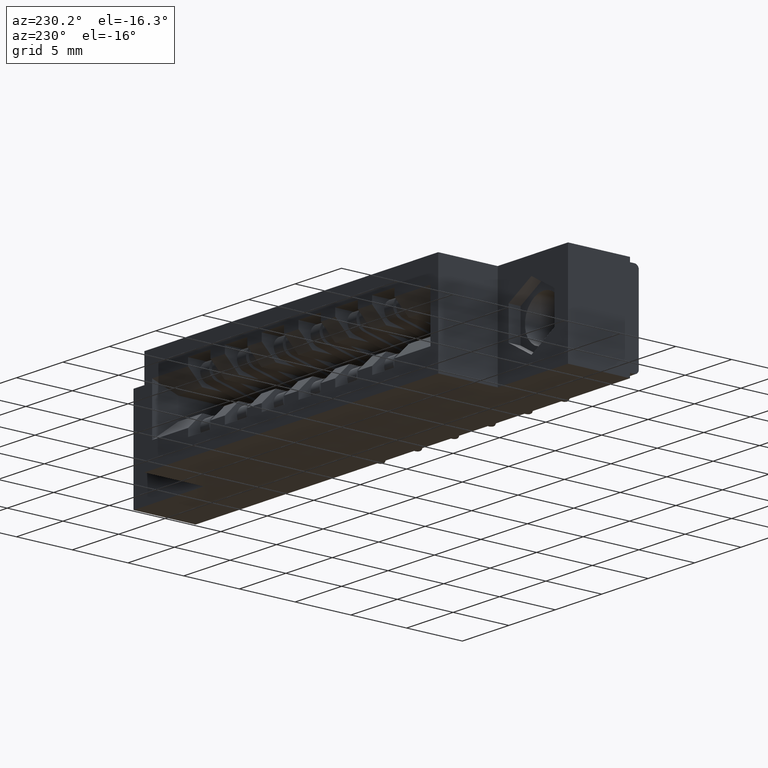
[diagram: clean part render]
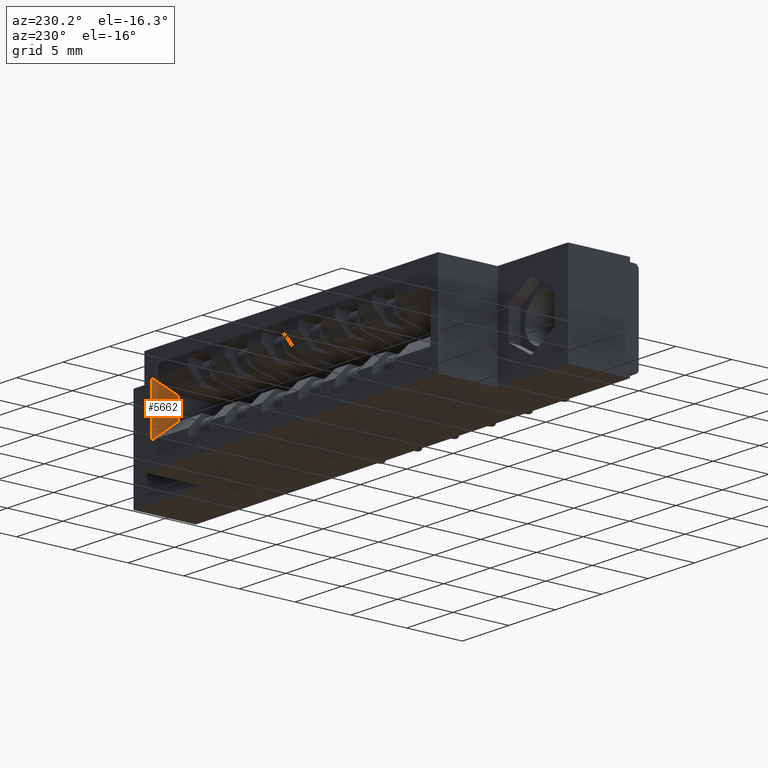
[diagram: same view with one face highlighted and labeled with its STEP entity id]
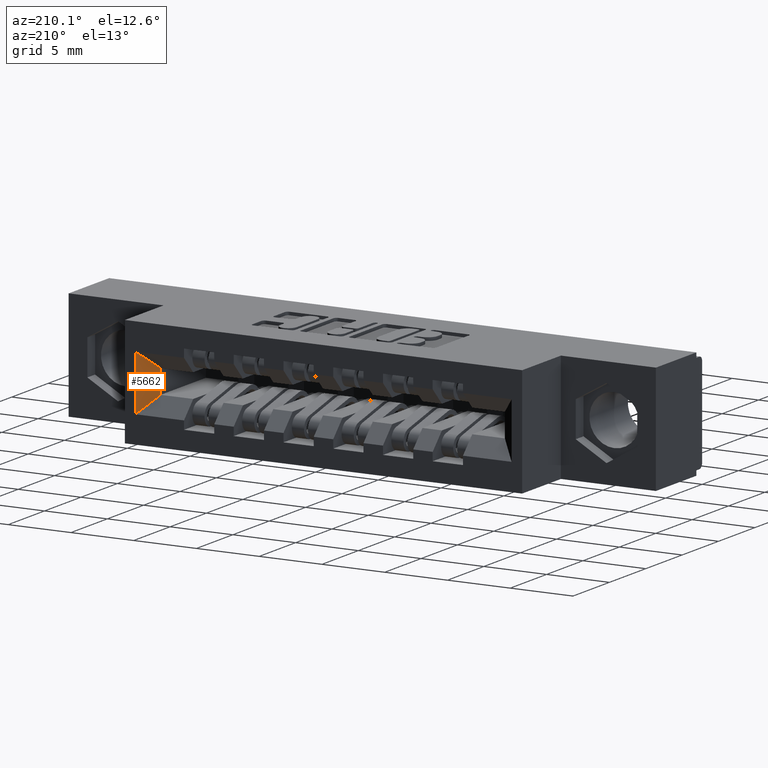
[diagram: same view with one face highlighted and labeled with its STEP entity id]
A machine part, auxiliary view. The second image highlights one B-rep face of the part: STEP entity #5662.
A second angle (auxiliary view) of the same face is appended — the face is thin or edge-on in the first view.
In plain terms, the highlighted planar face has unit normal (0.7071, -0.7071, 0).
Its self-contained STEP definition (entity closure, byte-faithful):
#58 = AXIS2_PLACEMENT_3D ( 'NONE', #1205, #2952, #2915 ) ;
#325 = PLANE ( 'NONE',  #58 ) ;
#327 = ORIENTED_EDGE ( 'NONE', *, *, #4922, .T. ) ;
#605 = EDGE_CURVE ( 'NONE', #10330, #7406, #6912, .T. ) ;
#1205 = CARTESIAN_POINT ( 'NONE',  ( 1.461000000000002700, 0.4100000000000002500, -0.2085000000000002400 ) ) ;
#1512 = DIRECTION ( 'NONE',  ( -0.5773502691896268400, -0.5773502691896236200, 0.5773502691896268400 ) ) ;
#1590 = CARTESIAN_POINT ( 'NONE',  ( 1.461000000000002700, 0.4100000000000002500, -0.2085000000000002400 ) ) ;
#1862 = DIRECTION ( 'NONE',  ( 0.5773502691896268400, 0.5773502691896236200, 0.5773502691896268400 ) ) ;
#2443 = FACE_OUTER_BOUND ( 'NONE', #6376, .T. ) ;
#2748 = EDGE_CURVE ( 'NONE', #10330, #9039, #5765, .T. ) ;
#2915 = DIRECTION ( 'NONE',  ( 0.7071067811865493500, 0.7071067811865454600, 0.0000000000000000000 ) ) ;
#2952 = DIRECTION ( 'NONE',  ( 0.7071067811865455700, -0.7071067811865494600, 0.0000000000000000000 ) ) ;
#2975 = VECTOR ( 'NONE', #7492, 39.37007874015748100 ) ;
#3243 = ORIENTED_EDGE ( 'NONE', *, *, #605, .T. ) ;
#4560 = CARTESIAN_POINT ( 'NONE',  ( 1.511000000000002800, 0.4600000000000000200, -0.2585000000000002900 ) ) ;
#4580 = CARTESIAN_POINT ( 'NONE',  ( 1.461000000000002700, 0.4100000000000002500, -0.2085000000000002400 ) ) ;
#4843 = CARTESIAN_POINT ( 'NONE',  ( 1.511000000000002800, 0.4600000000000000200, -0.3430000000000000300 ) ) ;
#4922 = EDGE_CURVE ( 'NONE', #11413, #9039, #4998, .T. ) ;
#4998 = LINE ( 'NONE', #6209, #8888 ) ;
#5576 = ORIENTED_EDGE ( 'NONE', *, *, #2748, .F. ) ;
#5662 = ADVANCED_FACE ( 'NONE', ( #2443 ), #325, .F. ) ;
#5765 = LINE ( 'NONE', #4843, #11290 ) ;
#6138 = CARTESIAN_POINT ( 'NONE',  ( 1.461000000000002700, 0.4100000000000002500, -0.1345000000000002300 ) ) ;
#6209 = CARTESIAN_POINT ( 'NONE',  ( 1.436333333333335900, 0.3853333333333336900, -0.1591666666666669800 ) ) ;
#6376 = EDGE_LOOP ( 'NONE', ( #327, #5576, #3243, #10362 ) ) ;
#6912 = LINE ( 'NONE', #1590, #7182 ) ;
#7182 = VECTOR ( 'NONE', #1512, 39.37007874015748100 ) ;
#7301 = LINE ( 'NONE', #4580, #2975 ) ;
#7406 = VERTEX_POINT ( 'NONE', #10598 ) ;
#7439 = DIRECTION ( 'NONE',  ( 0.0000000000000000000, 0.0000000000000000000, 1.000000000000000000 ) ) ;
#7492 = DIRECTION ( 'NONE',  ( 0.0000000000000000000, 0.0000000000000000000, -1.000000000000000000 ) ) ;
#7572 = EDGE_CURVE ( 'NONE', #11413, #7406, #7301, .T. ) ;
#8888 = VECTOR ( 'NONE', #1862, 39.37007874015748100 ) ;
#9039 = VERTEX_POINT ( 'NONE', #10837 ) ;
#10330 = VERTEX_POINT ( 'NONE', #4560 ) ;
#10362 = ORIENTED_EDGE ( 'NONE', *, *, #7572, .F. ) ;
#10598 = CARTESIAN_POINT ( 'NONE',  ( 1.461000000000002700, 0.4100000000000002500, -0.2085000000000002400 ) ) ;
#10837 = CARTESIAN_POINT ( 'NONE',  ( 1.511000000000002800, 0.4600000000000000200, -0.08450000000000021400 ) ) ;
#11290 = VECTOR ( 'NONE', #7439, 39.37007874015748100 ) ;
#11413 = VERTEX_POINT ( 'NONE', #6138 ) ;